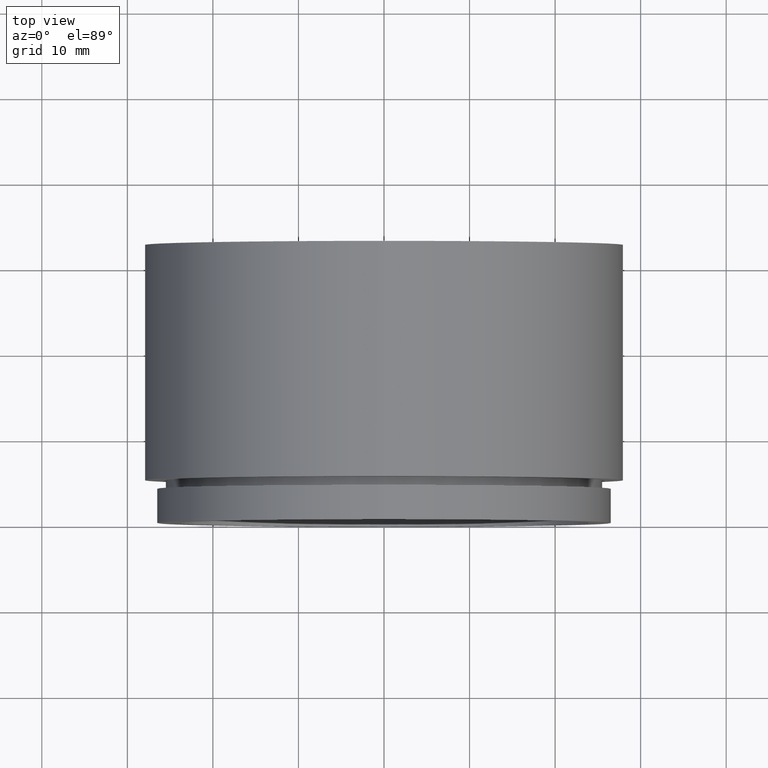
[diagram: clean part render]
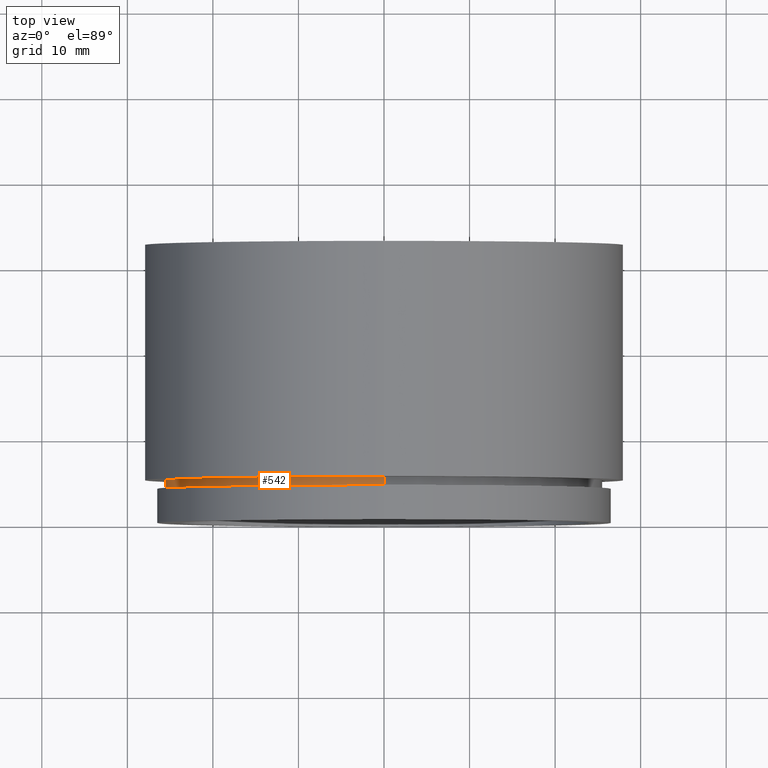
[diagram: same view with one face highlighted and labeled with its STEP entity id]
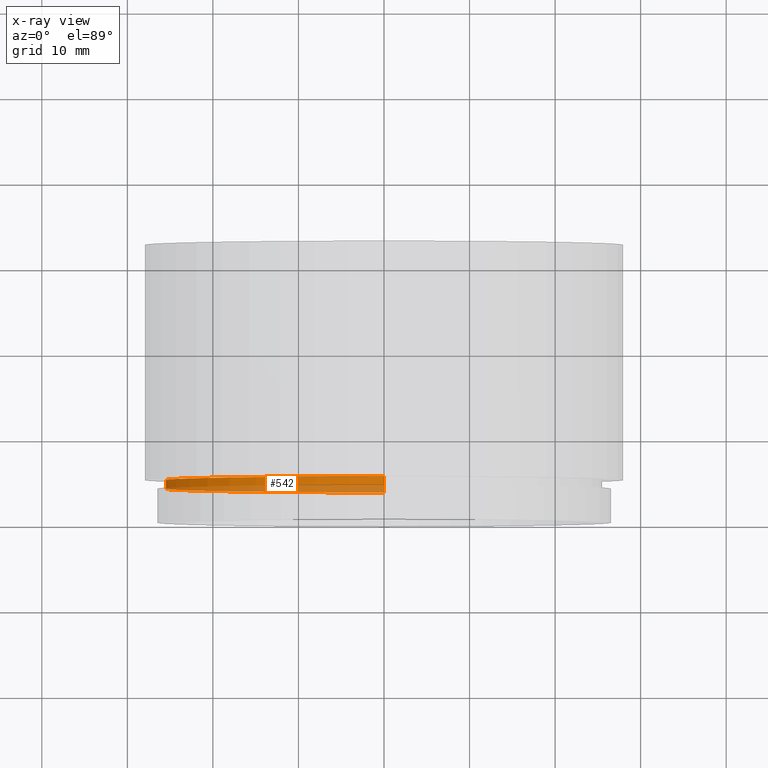
[diagram: x-ray of the same camera — body ghosted, the highlighted face saturated]
A machine part, top view. The second image highlights one B-rep face of the part: STEP entity #542.
The next image is the same camera in x-ray: the body ghosted, the highlighted face saturated — about 41% of this face is hidden behind the body in this view.
In plain terms, the highlighted cylindrical surface (partial cylindrical patch) has radius 25.5 mm, axis along (-0, -1, -0).
Its self-contained STEP definition (entity closure, byte-faithful):
#10 = ORIENTED_EDGE ( 'NONE', *, *, #463, .F. ) ;
#40 = CARTESIAN_POINT ( 'NONE',  ( 3.122849337825750200E-015, 5.000000000000000000, 25.50000000000000000 ) ) ;
#82 = DIRECTION ( 'NONE',  ( -0.0000000000000000000, -1.000000000000000000, -0.0000000000000000000 ) ) ;
#101 = CARTESIAN_POINT ( 'NONE',  ( 0.0000000000000000000, 4.000000000000000000, 0.0000000000000000000 ) ) ;
#105 = CARTESIAN_POINT ( 'NONE',  ( 0.0000000000000000000, 5.000000000000000000, -25.50000000000000000 ) ) ;
#152 = EDGE_CURVE ( 'NONE', #480, #274, #449, .T. ) ;
#164 = DIRECTION ( 'NONE',  ( 0.0000000000000000000, 0.0000000000000000000, -1.000000000000000000 ) ) ;
#181 = CYLINDRICAL_SURFACE ( 'NONE', #446, 25.50000000000000000 ) ;
#183 = CARTESIAN_POINT ( 'NONE',  ( 0.0000000000000000000, 0.0000000000000000000, -25.50000000000000000 ) ) ;
#221 = DIRECTION ( 'NONE',  ( 0.0000000000000000000, 0.0000000000000000000, -1.000000000000000000 ) ) ;
#228 = CARTESIAN_POINT ( 'NONE',  ( 0.0000000000000000000, 0.0000000000000000000, 0.0000000000000000000 ) ) ;
#243 = ORIENTED_EDGE ( 'NONE', *, *, #585, .T. ) ;
#268 = LINE ( 'NONE', #183, #639 ) ;
#274 = VERTEX_POINT ( 'NONE', #311 ) ;
#277 = DIRECTION ( 'NONE',  ( -0.0000000000000000000, -1.000000000000000000, -0.0000000000000000000 ) ) ;
#279 = AXIS2_PLACEMENT_3D ( 'NONE', #101, #461, #221 ) ;
#284 = DIRECTION ( 'NONE',  ( -0.0000000000000000000, -1.000000000000000000, -0.0000000000000000000 ) ) ;
#311 = CARTESIAN_POINT ( 'NONE',  ( 0.0000000000000000000, 4.000000000000000000, -25.50000000000000000 ) ) ;
#318 = ORIENTED_EDGE ( 'NONE', *, *, #152, .F. ) ;
#323 = CARTESIAN_POINT ( 'NONE',  ( 3.122849337825750200E-015, 0.0000000000000000000, 25.50000000000000000 ) ) ;
#337 = EDGE_LOOP ( 'NONE', ( #10, #243, #488, #318 ) ) ;
#357 = VERTEX_POINT ( 'NONE', #105 ) ;
#393 = VECTOR ( 'NONE', #406, 1000.000000000000000 ) ;
#406 = DIRECTION ( 'NONE',  ( -0.0000000000000000000, -1.000000000000000000, -0.0000000000000000000 ) ) ;
#412 = CARTESIAN_POINT ( 'NONE',  ( 3.122849337825750200E-015, 4.000000000000000000, 25.50000000000000000 ) ) ;
#422 = CIRCLE ( 'NONE', #612, 25.50000000000000000 ) ;
#446 = AXIS2_PLACEMENT_3D ( 'NONE', #228, #284, #164 ) ;
#449 = CIRCLE ( 'NONE', #279, 25.50000000000000000 ) ;
#454 = EDGE_CURVE ( 'NONE', #357, #274, #268, .T. ) ;
#461 = DIRECTION ( 'NONE',  ( -0.0000000000000000000, -1.000000000000000000, -0.0000000000000000000 ) ) ;
#463 = EDGE_CURVE ( 'NONE', #530, #480, #579, .T. ) ;
#480 = VERTEX_POINT ( 'NONE', #412 ) ;
#488 = ORIENTED_EDGE ( 'NONE', *, *, #454, .T. ) ;
#526 = DIRECTION ( 'NONE',  ( 0.0000000000000000000, 0.0000000000000000000, -1.000000000000000000 ) ) ;
#530 = VERTEX_POINT ( 'NONE', #40 ) ;
#542 = ADVANCED_FACE ( 'NONE', ( #636 ), #181, .T. ) ;
#579 = LINE ( 'NONE', #323, #393 ) ;
#585 = EDGE_CURVE ( 'NONE', #530, #357, #422, .T. ) ;
#612 = AXIS2_PLACEMENT_3D ( 'NONE', #648, #277, #526 ) ;
#636 = FACE_OUTER_BOUND ( 'NONE', #337, .T. ) ;
#639 = VECTOR ( 'NONE', #82, 1000.000000000000000 ) ;
#648 = CARTESIAN_POINT ( 'NONE',  ( 0.0000000000000000000, 5.000000000000000000, 0.0000000000000000000 ) ) ;